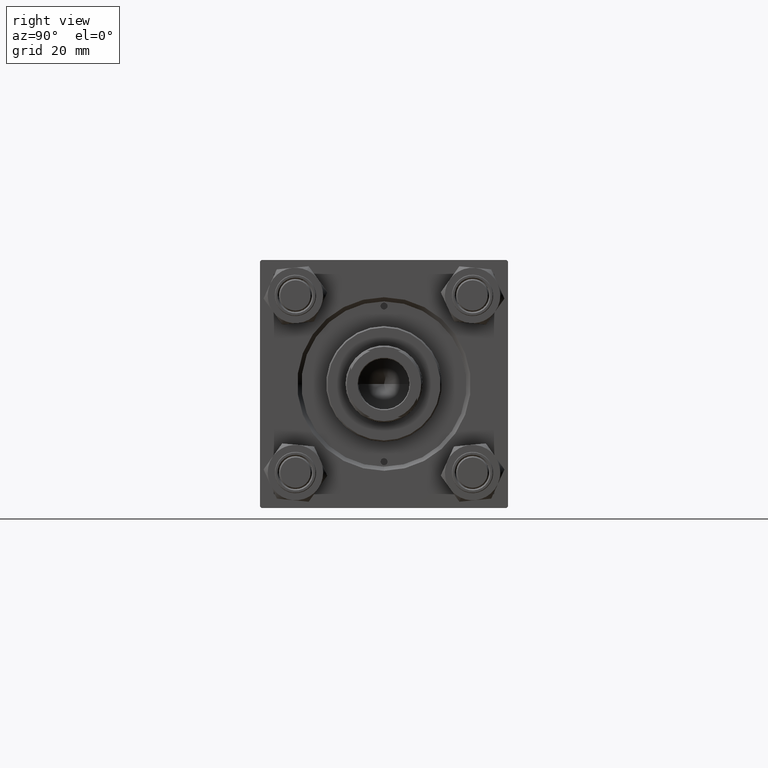
[diagram: clean part render]
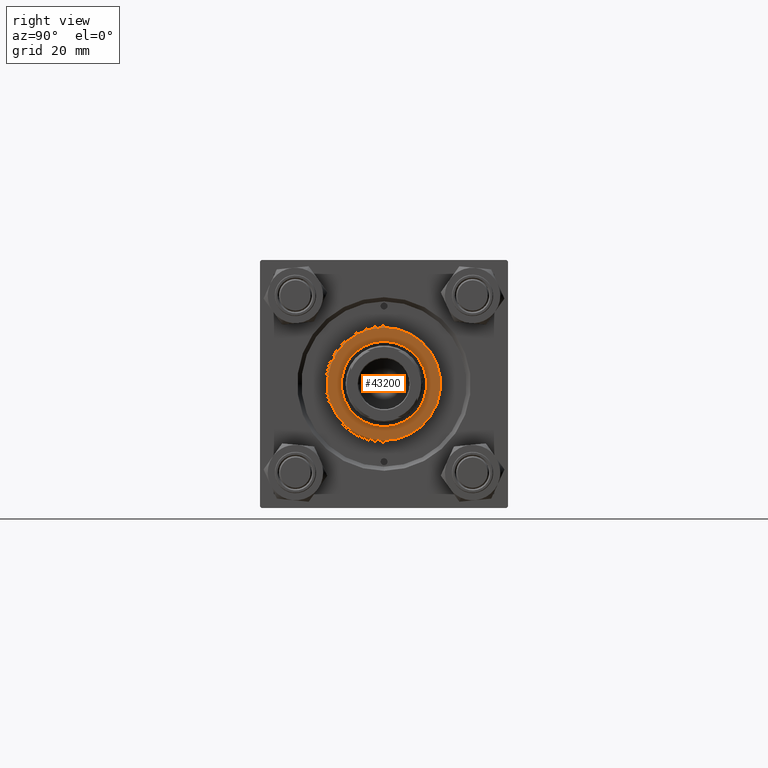
[diagram: same view with one face highlighted and labeled with its STEP entity id]
A machine part, right view. The second image highlights one B-rep face of the part: STEP entity #43200.
In plain terms, the highlighted planar face has unit normal (1, 0, -0).
Its self-contained STEP definition (entity closure, byte-faithful):
#2660 = VERTEX_POINT ( 'NONE', #32331 ) ;
#2941 = DIRECTION ( 'NONE',  ( 1.000000000000000000, 0.000000000000000000, 0.000000000000000000 ) ) ;
#3638 = FACE_BOUND ( 'NONE', #8627, .T. ) ;
#3979 = AXIS2_PLACEMENT_3D ( 'NONE', #11223, #34225, #30443 ) ;
#4034 = CIRCLE ( 'NONE', #39547, 20.50000000000000355 ) ;
#6180 = AXIS2_PLACEMENT_3D ( 'NONE', #49950, #18622, #10296 ) ;
#6746 = DIRECTION ( 'NONE',  ( 0.000000000000000000, 0.000000000000000000, 1.000000000000000000 ) ) ;
#7848 = AXIS2_PLACEMENT_3D ( 'NONE', #25959, #6746, #2941 ) ;
#8627 = EDGE_LOOP ( 'NONE', ( #34487, #28139 ) ) ;
#8772 = CARTESIAN_POINT ( 'NONE',  ( 20.50000000000000355, 2.541142108230758269E-15, 39.69999999999999574 ) ) ;
#10296 = DIRECTION ( 'NONE',  ( 1.000000000000000000, 0.000000000000000000, 0.000000000000000000 ) ) ;
#11223 = CARTESIAN_POINT ( 'NONE',  ( 0.000000000000000000, 0.000000000000000000, 39.69999999999999574 ) ) ;
#13857 = CARTESIAN_POINT ( 'NONE',  ( 0.000000000000000000, 0.000000000000000000, 39.69999999999999574 ) ) ;
#14047 = PLANE ( 'NONE',  #3979 ) ;
#17647 = DIRECTION ( 'NONE',  ( 0.000000000000000000, 0.000000000000000000, 1.000000000000000000 ) ) ;
#17661 = CARTESIAN_POINT ( 'NONE',  ( -20.50000000000000355, 0.000000000000000000, 39.69999999999999574 ) ) ;
#18054 = EDGE_CURVE ( 'NONE', #43758, #34713, #4034, .T. ) ;
#18582 = FACE_OUTER_BOUND ( 'NONE', #31192, .T. ) ;
#18622 = DIRECTION ( 'NONE',  ( 0.000000000000000000, 0.000000000000000000, 1.000000000000000000 ) ) ;
#19090 = ORIENTED_EDGE ( 'NONE', *, *, #18054, .T. ) ;
#21390 = CARTESIAN_POINT ( 'NONE',  ( 15.50000000000000000, 0.000000000000000000, 39.69999999999999574 ) ) ;
#22907 = ORIENTED_EDGE ( 'NONE', *, *, #38186, .T. ) ;
#23650 = VERTEX_POINT ( 'NONE', #21390 ) ;
#25959 = CARTESIAN_POINT ( 'NONE',  ( 0.000000000000000000, 0.000000000000000000, 39.69999999999999574 ) ) ;
#26499 = CARTESIAN_POINT ( 'NONE',  ( 0.000000000000000000, 0.000000000000000000, 39.69999999999999574 ) ) ;
#28139 = ORIENTED_EDGE ( 'NONE', *, *, #35735, .F. ) ;
#29779 = CIRCLE ( 'NONE', #37022, 20.50000000000000355 ) ;
#30060 = DIRECTION ( 'NONE',  ( 1.000000000000000000, 0.000000000000000000, 0.000000000000000000 ) ) ;
#30443 = DIRECTION ( 'NONE',  ( 1.000000000000000000, 0.000000000000000000, -0.000000000000000000 ) ) ;
#30485 = CIRCLE ( 'NONE', #7848, 15.50000000000000000 ) ;
#31192 = EDGE_LOOP ( 'NONE', ( #19090, #22907 ) ) ;
#31682 = EDGE_CURVE ( 'NONE', #23650, #2660, #38439, .T. ) ;
#32331 = CARTESIAN_POINT ( 'NONE',  ( -15.50000000000000000, 1.898202538678397557E-15, 39.69999999999999574 ) ) ;
#33555 = DIRECTION ( 'NONE',  ( 1.000000000000000000, 0.000000000000000000, 0.000000000000000000 ) ) ;
#33834 = DIRECTION ( 'NONE',  ( 0.000000000000000000, 0.000000000000000000, 1.000000000000000000 ) ) ;
#34225 = DIRECTION ( 'NONE',  ( 0.000000000000000000, 0.000000000000000000, 1.000000000000000000 ) ) ;
#34487 = ORIENTED_EDGE ( 'NONE', *, *, #31682, .F. ) ;
#34713 = VERTEX_POINT ( 'NONE', #8772 ) ;
#35735 = EDGE_CURVE ( 'NONE', #2660, #23650, #30485, .T. ) ;
#37022 = AXIS2_PLACEMENT_3D ( 'NONE', #13857, #17647, #33555 ) ;
#38186 = EDGE_CURVE ( 'NONE', #34713, #43758, #29779, .T. ) ;
#38439 = CIRCLE ( 'NONE', #6180, 15.50000000000000000 ) ;
#39547 = AXIS2_PLACEMENT_3D ( 'NONE', #26499, #33834, #30060 ) ;
#43200 = ADVANCED_FACE ( 'NONE', ( #3638, #18582 ), #14047, .T. ) ;
#43758 = VERTEX_POINT ( 'NONE', #17661 ) ;
#49950 = CARTESIAN_POINT ( 'NONE',  ( 0.000000000000000000, 0.000000000000000000, 39.69999999999999574 ) ) ;